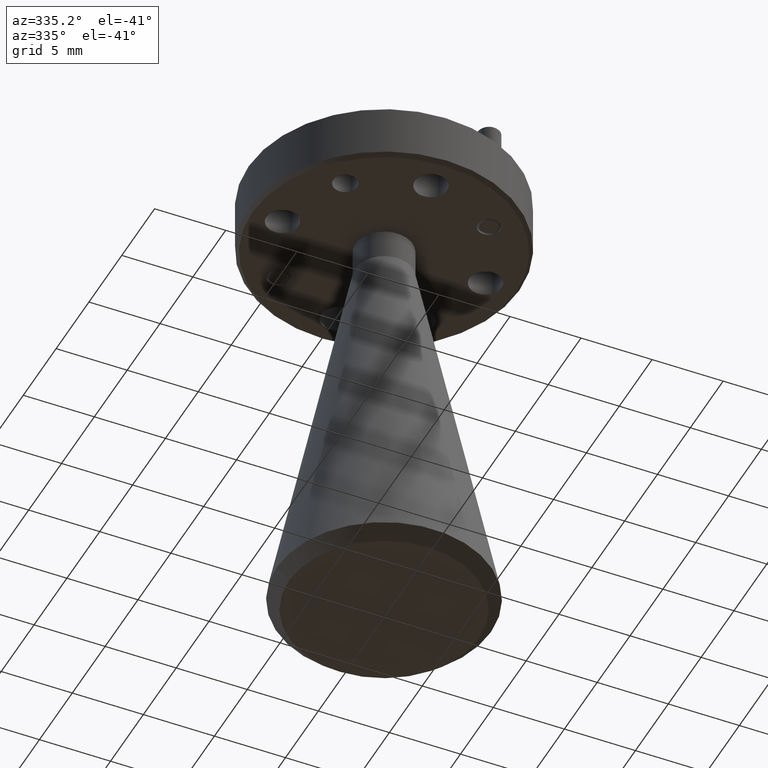
[diagram: clean part render]
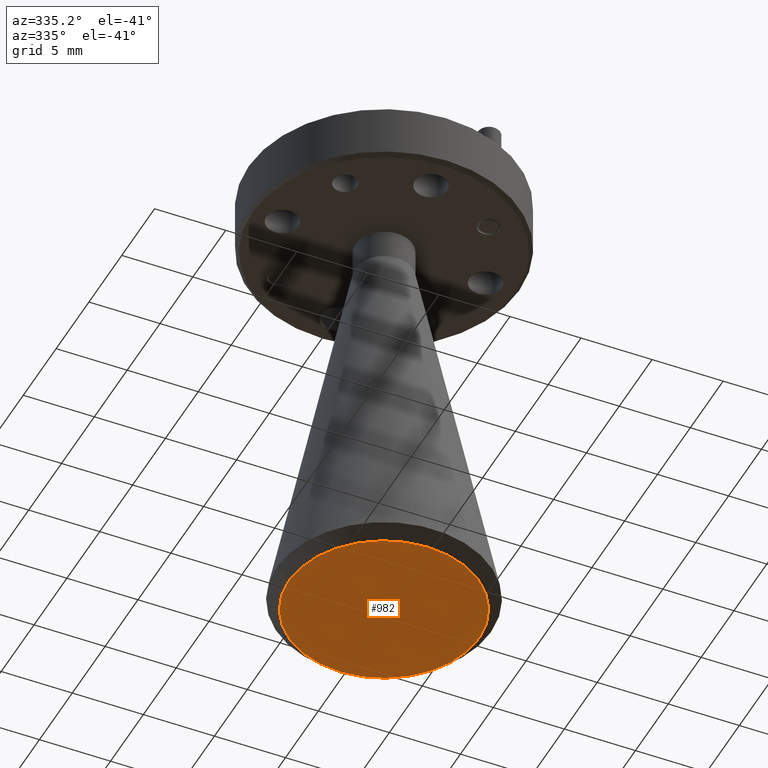
[diagram: same view with one face highlighted and labeled with its STEP entity id]
A machine part, auxiliary view. The second image highlights one B-rep face of the part: STEP entity #982.
In plain terms, the highlighted planar face has unit normal (0, 0, -1).
Its self-contained STEP definition (entity closure, byte-faithful):
#145 = DIRECTION ( 'NONE',  ( -1.000000000000000000, 0.000000000000000000, 0.000000000000000000 ) ) ;
#420 = DIRECTION ( 'NONE',  ( -1.000000000000000000, 0.000000000000000000, -0.000000000000000000 ) ) ;
#506 = EDGE_CURVE ( 'NONE', #1458, #890, #1415, .T. ) ;
#523 = EDGE_LOOP ( 'NONE', ( #1124, #1779 ) ) ;
#547 = AXIS2_PLACEMENT_3D ( 'NONE', #1122, #762, #420 ) ;
#629 = EDGE_CURVE ( 'NONE', #890, #1458, #813, .T. ) ;
#643 = DIRECTION ( 'NONE',  ( -1.000000000000000000, 0.000000000000000000, 0.000000000000000000 ) ) ;
#762 = DIRECTION ( 'NONE',  ( 0.000000000000000000, 0.000000000000000000, -1.000000000000000000 ) ) ;
#813 = CIRCLE ( 'NONE', #2023, 0.2633373139389304507 ) ;
#890 = VERTEX_POINT ( 'NONE', #2016 ) ;
#982 = ADVANCED_FACE ( 'NONE', ( #2245 ), #1109, .T. ) ;
#1109 = PLANE ( 'NONE',  #547 ) ;
#1122 = CARTESIAN_POINT ( 'NONE',  ( 0.2421259842519685179, 0.000000000000000000, -1.350000000000000089 ) ) ;
#1124 = ORIENTED_EDGE ( 'NONE', *, *, #629, .T. ) ;
#1328 = DIRECTION ( 'NONE',  ( 0.000000000000000000, 0.000000000000000000, -1.000000000000000000 ) ) ;
#1415 = CIRCLE ( 'NONE', #2334, 0.2633373139389304507 ) ;
#1418 = DIRECTION ( 'NONE',  ( 0.000000000000000000, 0.000000000000000000, -1.000000000000000000 ) ) ;
#1458 = VERTEX_POINT ( 'NONE', #1521 ) ;
#1496 = CARTESIAN_POINT ( 'NONE',  ( 0.000000000000000000, 0.000000000000000000, -1.350000000000000089 ) ) ;
#1521 = CARTESIAN_POINT ( 'NONE',  ( -0.2633373139389304507, 3.428728043402165106E-17, -1.350000000000000089 ) ) ;
#1730 = CARTESIAN_POINT ( 'NONE',  ( 0.000000000000000000, 0.000000000000000000, -1.350000000000000089 ) ) ;
#1779 = ORIENTED_EDGE ( 'NONE', *, *, #506, .T. ) ;
#2016 = CARTESIAN_POINT ( 'NONE',  ( 0.2633373139389304507, 0.000000000000000000, -1.350000000000000089 ) ) ;
#2023 = AXIS2_PLACEMENT_3D ( 'NONE', #1730, #1418, #145 ) ;
#2245 = FACE_OUTER_BOUND ( 'NONE', #523, .T. ) ;
#2334 = AXIS2_PLACEMENT_3D ( 'NONE', #1496, #1328, #643 ) ;